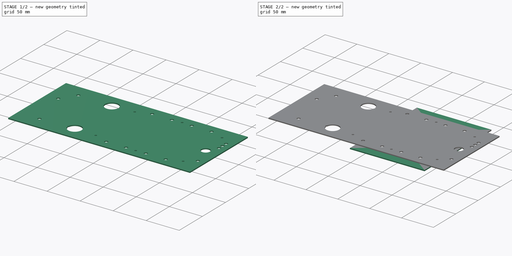
[diagram: build sequence overview — one tinted view per stage of 2, left to right]
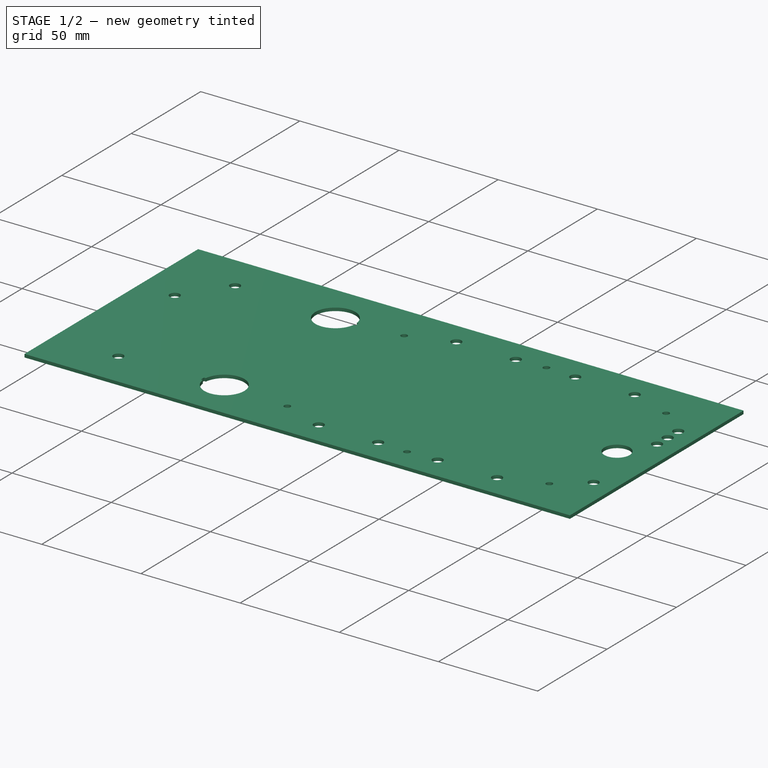
[diagram: stage 1 of 2 — iso view after this stage's code; geometry added in this stage tinted green]
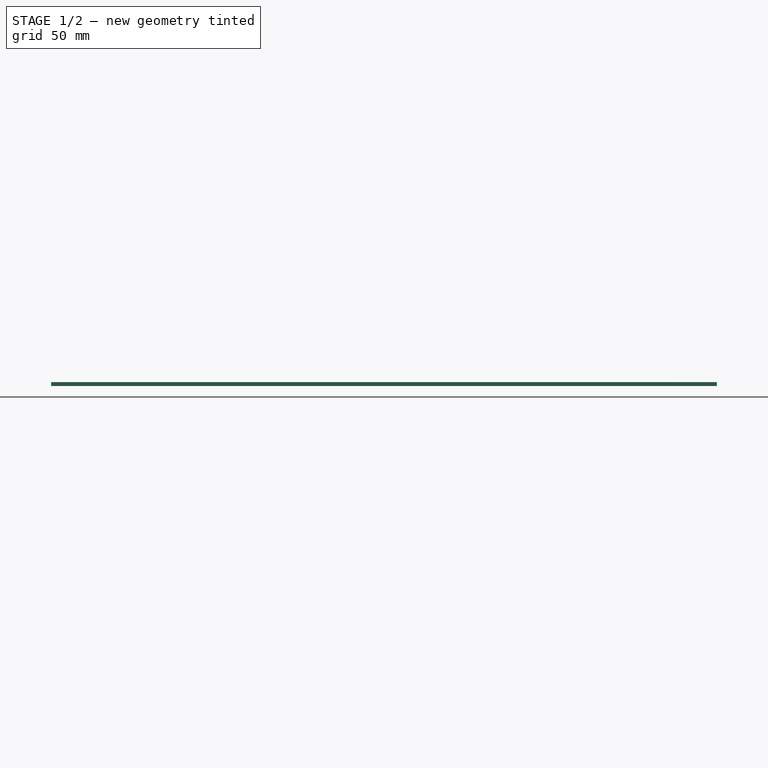
[diagram: stage 1 of 2 — front view after this stage's code; geometry added in this stage tinted green]
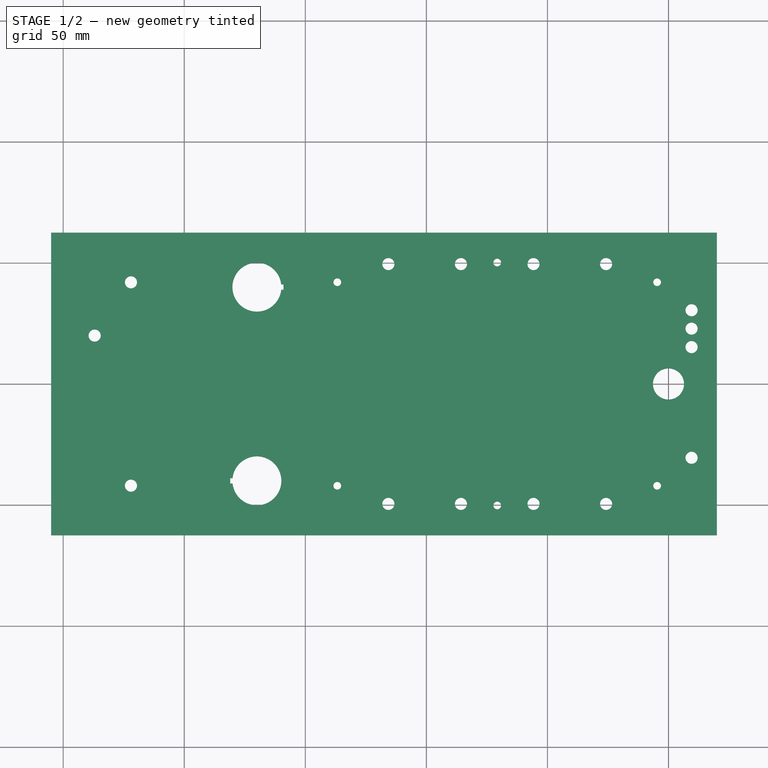
[diagram: stage 1 of 2 — top view after this stage's code; geometry added in this stage tinted green]
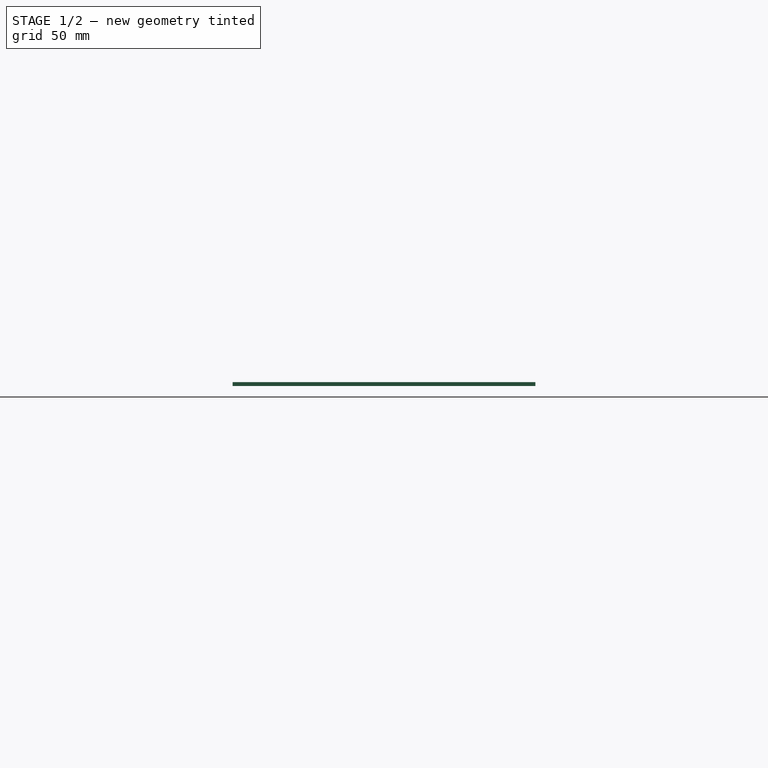
[diagram: stage 1 of 2 — right view after this stage's code; geometry added in this stage tinted green]
FCSTD DOCUMENT  (FreeCAD 0.18R)
Label: telefireeight
License: All rights reserved
LicenseURL: http://en.wikipedia.org/wiki/All_rights_reserved
objects: Sketcher::SketchObject×5, Part::Extrusion×2
note: 7 computed .brp shape members not serialized (recipe doc carries the construction recipe); baked Part::Feature solids carry a one-line shape summary decoded from their .brp

FEATURE [Part::Extrusion] Extrude001  label="extrude top"
  Base = -> Sketch002
  Dir = (0,0,1)
  DirMode = 2
  FaceMakerClass = Part::FaceMakerBullseye
  LengthFwd = 1.6
  LengthRev = 0
  Solid = true
  Symmetric = false
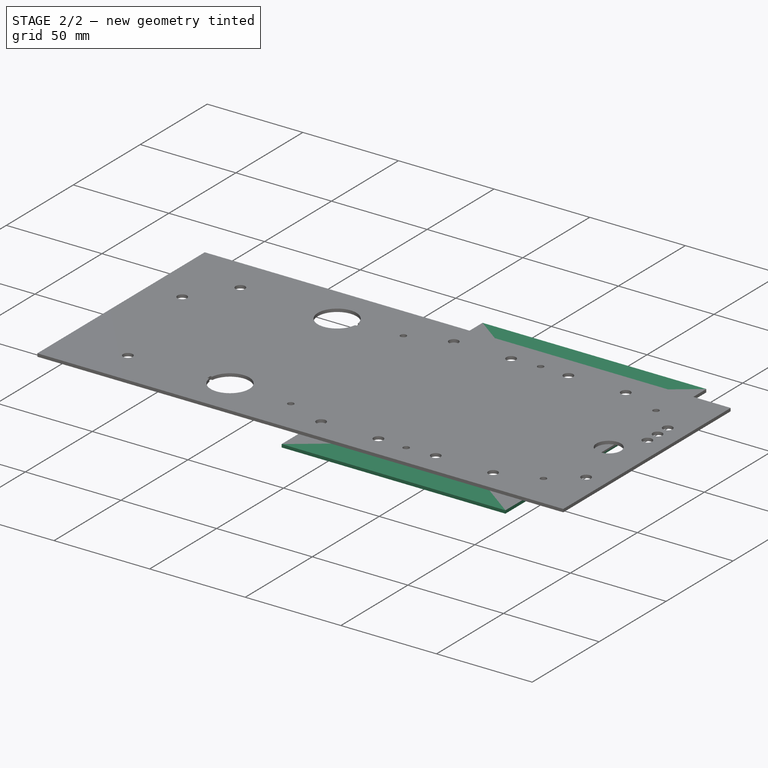
[diagram: stage 2 of 2 — iso view after this stage's code; geometry added in this stage tinted green]
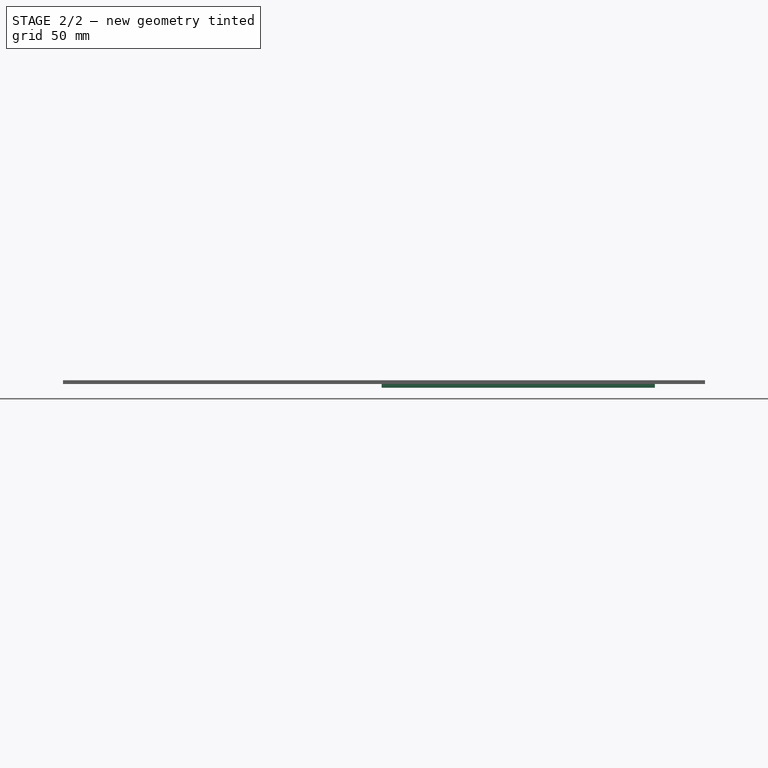
[diagram: stage 2 of 2 — front view after this stage's code; geometry added in this stage tinted green]
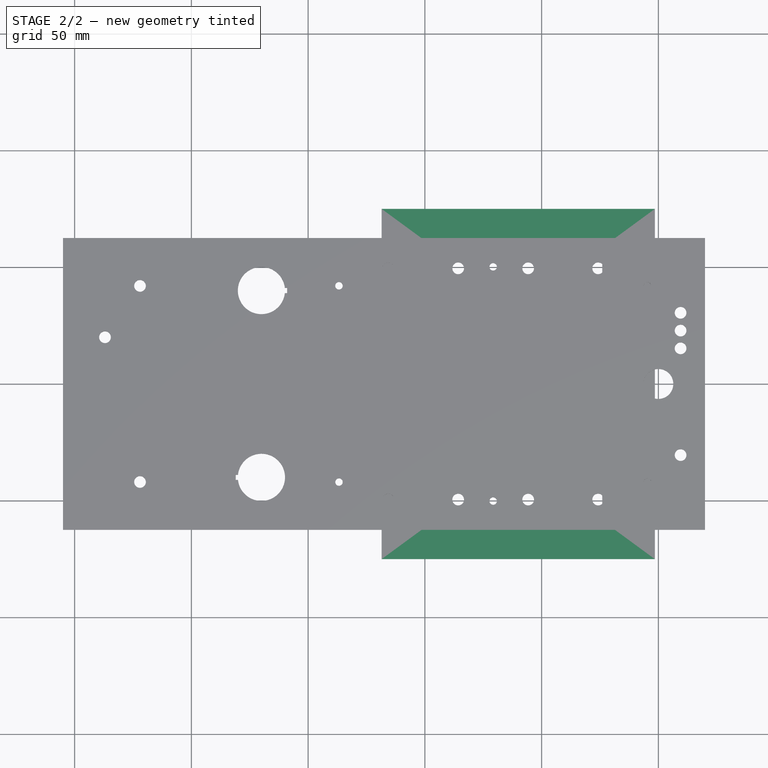
[diagram: stage 2 of 2 — top view after this stage's code; geometry added in this stage tinted green]
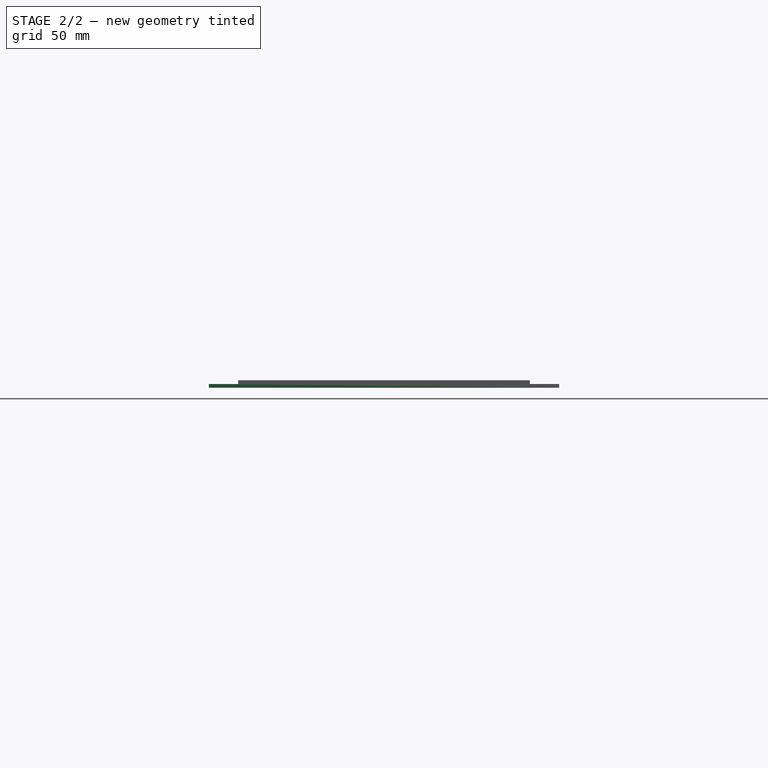
[diagram: stage 2 of 2 — right view after this stage's code; geometry added in this stage tinted green]
FEATURE [Sketcher::SketchObject] Sketch  label="duplex outlet left"
  Placement = pos=(-60,0,0) rot=(0,0,1;0rad)
  sketch-geometry (15):
    g0: LineSegment [constr] StartX=-58.5 StartY=36.5 StartZ=0 EndX=58.5 EndY=36.5 EndZ=0
    g1: LineSegment [constr] StartX=58.5 StartY=36.5 StartZ=0 EndX=58.5 EndY=-36.5 EndZ=0
    g2: LineSegment [constr] StartX=58.5 StartY=-36.5 StartZ=0 EndX=-58.5 EndY=-36.5 EndZ=0
    g3: LineSegment [constr] StartX=-58.5 StartY=-36.5 StartZ=0 EndX=-58.5 EndY=36.5 EndZ=0
    g4: Circle CenterX=0 CenterY=0 CenterZ=0 NormalX=0 NormalY=0 NormalZ=1 AngleXU=0 Radius=1.9
    g5: LineSegment StartX=-33.655 StartY=9.525 StartZ=0 EndX=-33.655 EndY=-9.525 EndZ=0
    g6: LineSegment StartX=-5.207 StartY=9.525 StartZ=0 EndX=-5.207 EndY=-9.525 EndZ=0
    g7: ArcOfCircle CenterX=-19.431 CenterY=-0.714067 CenterZ=0 NormalX=0 NormalY=0 NormalZ=1 AngleXU=0 Radius=17.526 StartAngle=0.623921 EndAngle=2.51767
    g8: ArcOfCircle CenterX=-19.431 CenterY=0.714067 CenterZ=0 NormalX=0 NormalY=0 NormalZ=1 AngleXU=0 Radius=17.526 StartAngle=3.76551 EndAngle=5.65926
    g9: LineSegment StartX=5.207 StartY=9.525 StartZ=0 EndX=5.207 EndY=-9.525 EndZ=0
    g10: LineSegment StartX=33.655 StartY=9.525 StartZ=0 EndX=33.655 EndY=-9.525 EndZ=0
    g11: ArcOfCircle CenterX=19.431 CenterY=-0.714067 CenterZ=0 NormalX=0 NormalY=0 NormalZ=1 AngleXU=0 Radius=17.526 StartAngle=0.623921 EndAngle=2.51767
    g12: ArcOfCircle CenterX=19.431 CenterY=0.714067 CenterZ=0 NormalX=0 NormalY=0 NormalZ=1 AngleXU=0 Radius=17.526 StartAngle=3.76551 EndAngle=5.65926
    g13: Circle CenterX=-41.656 CenterY=0 CenterZ=0 NormalX=0 NormalY=0 NormalZ=1 AngleXU=0 Radius=1.9
    g14: Circle CenterX=41.656 CenterY=0 CenterZ=0 NormalX=0 NormalY=0 NormalZ=1 AngleXU=0 Radius=1.9
  constraints (48):
    c: Coincident(g0,g1)
    c: Coincident(g1,g2)
    c: Coincident(g2,g3)
    c: Coincident(g3,g0)
    c: Horizontal(g0)
    c: Horizontal(g2)
    c: Vertical(g1)
    c: Vertical(g3)
    c: DistanceX(g0,g0) = 117
    c: DistanceY(g3,g3) = 73
    c: Symmetric(g0,g1,g-1)
    c: Symmetric(g0,g0,g-2)
    c: Coincident(g4,g-1)
    c: Radius(g4) = 1.9
    c: Vertical(g5)
    c: DistanceY(g5,g5) = 19.05
    c: Symmetric(g5,g5,g-1)
    c: Vertical(g6)
    c: Equal(g6,g5)
    c: Symmetric(g6,g6,g-1)
    c: DistanceX(g6,g-1) = 5.207
    c: DistanceX(g5,g6) = 28.448
    c: Coincident(g7,g5)
    c: Coincident(g7,g6)
    c: Radius(g7) = 17.526
    c: Coincident(g8,g5)
    c: Coincident(g8,g6)
    c: Equal(g7,g8)
    c: Vertical(g9)
    c: Equal(g6,g9)
    c: Symmetric(g9,g9,g-1)
    c: DistanceX(g-1,g9) = 5.207
    c: Vertical(g10)
    c: Equal(g9,g10)
    c: DistanceX(g9,g10) = 28.448
    c: Coincident(g11,g9)
    c: Coincident(g11,g10)
    c: Equal(g11,g7)
    c: Symmetric(g10,g10,g-1)
    c: Coincident(g12,g9)
    c: Coincident(g12,g10)
    c: Equal(g11,g12)
    c: PointOnObject(g13,g-1)
    c: PointOnObject(g14,g-1)
    c: DistanceX(g13,g14) = 83.312
    c: Symmetric(g13,g14,g-1)
    c: Equal(g4,g14)
    c: Equal(g14,g13)
FEATURE [Sketcher::SketchObject] Sketch001  label="duplex outlet right"
  Placement = pos=(60,0,0) rot=(0,0,1;0rad)
  sketch-geometry (15):
    g0: LineSegment [constr] StartX=-58.5 StartY=36.5 StartZ=0 EndX=58.5 EndY=36.5 EndZ=0
    g1: LineSegment [constr] StartX=58.5 StartY=36.5 StartZ=0 EndX=58.5 EndY=-36.5 EndZ=0
    g2: LineSegment [constr] StartX=58.5 StartY=-36.5 StartZ=0 EndX=-58.5 EndY=-36.5 EndZ=0
    g3: LineSegment [constr] StartX=-58.5 StartY=-36.5 StartZ=0 EndX=-58.5 EndY=36.5 EndZ=0
    g4: Circle CenterX=0 CenterY=0 CenterZ=0 NormalX=0 NormalY=0 NormalZ=1 AngleXU=0 Radius=1.9
    g5: LineSegment StartX=-33.655 StartY=9.525 StartZ=0 EndX=-33.655 EndY=-9.525 EndZ=0
    g6: LineSegment StartX=-5.207 StartY=9.525 StartZ=0 EndX=-5.207 EndY=-9.525 EndZ=0
    g7: ArcOfCircle CenterX=-19.431 CenterY=-0.714067 CenterZ=0 NormalX=0 NormalY=0 NormalZ=1 AngleXU=0 Radius=17.526 StartAngle=0.623921 EndAngle=2.51767
    g8: ArcOfCircle CenterX=-19.431 CenterY=0.714067 CenterZ=0 NormalX=0 NormalY=0 NormalZ=1 AngleXU=0 Radius=17.526 StartAngle=3.76551 EndAngle=5.65926
    g9: LineSegment StartX=5.207 StartY=9.525 StartZ=0 EndX=5.207 EndY=-9.525 EndZ=0
    g10: LineSegment StartX=33.655 StartY=9.525 StartZ=0 EndX=33.655 EndY=-9.525 EndZ=0
    g11: ArcOfCircle CenterX=19.431 CenterY=-0.714067 CenterZ=0 NormalX=0 NormalY=0 NormalZ=1 AngleXU=0 Radius=17.526 StartAngle=0.623921 EndAngle=2.51767
    g12: ArcOfCircle CenterX=19.431 CenterY=0.714067 CenterZ=0 NormalX=0 NormalY=0 NormalZ=1 AngleXU=0 Radius=17.526 StartAngle=3.76551 EndAngle=5.65926
    g13: Circle CenterX=-41.656 CenterY=0 CenterZ=0 NormalX=0 NormalY=0 NormalZ=1 AngleXU=0 Radius=1.9
    g14: Circle CenterX=41.656 CenterY=0 CenterZ=0 NormalX=0 NormalY=0 NormalZ=1 AngleXU=0 Radius=1.9
  constraints (48):
    c: Coincident(g0,g1)
    c: Coincident(g1,g2)
    c: Coincident(g2,g3)
    c: Coincident(g3,g0)
    c: Horizontal(g0)
    c: Horizontal(g2)
    c: Vertical(g1)
    c: Vertical(g3)
    c: DistanceX(g0,g0) = 117
    c: DistanceY(g3,g3) = 73
    c: Symmetric(g0,g1,g-1)
    c: Symmetric(g0,g0,g-2)
    c: Coincident(g4,g-1)
    c: Radius(g4) = 1.9
    c: Vertical(g5)
    c: DistanceY(g5,g5) = 19.05
    c: Symmetric(g5,g5,g-1)
    c: Vertical(g6)
    c: Equal(g6,g5)
    c: Symmetric(g6,g6,g-1)
    c: DistanceX(g6,g-1) = 5.207
    c: DistanceX(g5,g6) = 28.448
    c: Coincident(g7,g5)
    c: Coincident(g7,g6)
    c: Radius(g7) = 17.526
    c: Coincident(g8,g5)
    c: Coincident(g8,g6)
    c: Equal(g7,g8)
    c: Vertical(g9)
    c: Equal(g6,g9)
    c: Symmetric(g9,g9,g-1)
    c: DistanceX(g-1,g9) = 5.207
    c: Vertical(g10)
    c: Equal(g9,g10)
    c: DistanceX(g9,g10) = 28.448
    c: Coincident(g11,g9)
    c: Coincident(g11,g10)
    c: Equal(g11,g7)
    c: Symmetric(g10,g10,g-1)
    c: Coincident(g12,g9)
    c: Coincident(g12,g10)
    c: Equal(g11,g12)
    c: PointOnObject(g13,g-1)
    c: PointOnObject(g14,g-1)
    c: DistanceX(g13,g14) = 83.312
    c: Symmetric(g13,g14,g-1)
    c: Equal(g4,g14)
    c: Equal(g14,g13)
FEATURE [Sketcher::SketchObject] Sketch002  label="top"
  sketch-geometry (41):
    g0: Circle CenterX=0 CenterY=0 CenterZ=0 NormalX=0 NormalY=0 NormalZ=1 AngleXU=0 Radius=6.4135
    g1: LineSegment [constr] StartX=-136.779 StartY=42.037 StartZ=0 EndX=-136.779 EndY=-42.037 EndZ=0
    g2: Circle CenterX=-136.779 CenterY=42.037 CenterZ=0 NormalX=0 NormalY=0 NormalZ=1 AngleXU=0 Radius=1.5875
    g3: Circle CenterX=-136.779 CenterY=-42.037 CenterZ=0 NormalX=0 NormalY=0 NormalZ=1 AngleXU=0 Radius=1.5875
    g4: LineSegment [constr] StartX=-4.699 StartY=42.037 StartZ=0 EndX=-4.699 EndY=-42.037 EndZ=0
    g5: Circle CenterX=-4.699 CenterY=42.037 CenterZ=0 NormalX=0 NormalY=0 NormalZ=1 AngleXU=0 Radius=1.5875
    g6: Circle CenterX=-4.699 CenterY=-42.037 CenterZ=0 NormalX=0 NormalY=0 NormalZ=1 AngleXU=0 Radius=1.5875
    g7: LineSegment [constr] StartX=-70.739 StartY=50.165 StartZ=0 EndX=-70.739 EndY=-50.165 EndZ=0
    g8: Circle CenterX=-70.739 CenterY=50.165 CenterZ=0 NormalX=0 NormalY=0 NormalZ=1 AngleXU=0 Radius=1.5875
    g9: Circle CenterX=-70.739 CenterY=-50.165 CenterZ=0 NormalX=0 NormalY=0 NormalZ=1 AngleXU=0 Radius=1.5875
    g10: LineSegment [constr] StartX=9.525 StartY=30.48 StartZ=0 EndX=9.525 EndY=-30.48 EndZ=0
    g11: Circle CenterX=9.525 CenterY=30.48 CenterZ=0 NormalX=0 NormalY=0 NormalZ=1 AngleXU=0 Radius=2.5
    g12: Circle CenterX=9.525 CenterY=22.86 CenterZ=0 NormalX=0 NormalY=0 NormalZ=1 AngleXU=0 Radius=2.5
    g13: Circle CenterX=9.525 CenterY=15.24 CenterZ=0 NormalX=0 NormalY=0 NormalZ=1 AngleXU=0 Radius=2.5
    g14: Circle CenterX=9.525 CenterY=-30.48 CenterZ=0 NormalX=0 NormalY=0 NormalZ=1 AngleXU=0 Radius=2.5
    g15: LineSegment [constr] StartX=-115.697 StartY=49.53 StartZ=0 EndX=-25.781 EndY=49.53 EndZ=0
    g16: Circle CenterX=-25.781 CenterY=49.53 CenterZ=0 NormalX=0 NormalY=0 NormalZ=1 AngleXU=0 Radius=2.5
    g17: Circle CenterX=-115.697 CenterY=49.53 CenterZ=0 NormalX=0 NormalY=0 NormalZ=1 AngleXU=0 Radius=2.5
    g18: Circle CenterX=-85.725 CenterY=49.53 CenterZ=0 NormalX=0 NormalY=0 NormalZ=1 AngleXU=0 Radius=2.5
    g19: Circle CenterX=-55.753 CenterY=49.53 CenterZ=0 NormalX=0 NormalY=0 NormalZ=1 AngleXU=0 Radius=2.5
    g20: LineSegment [constr] StartX=-115.697 StartY=-49.53 StartZ=0 EndX=-25.781 EndY=-49.53 EndZ=0
    g21: Circle CenterX=-115.697 CenterY=-49.53 CenterZ=0 NormalX=0 NormalY=0 NormalZ=1 AngleXU=0 Radius=2.5
    g22: Circle CenterX=-85.725 CenterY=-49.53 CenterZ=0 NormalX=0 NormalY=0 NormalZ=1 AngleXU=0 Radius=2.5
    g23: Circle CenterX=-55.753 CenterY=-49.53 CenterZ=0 NormalX=0 NormalY=0 NormalZ=1 AngleXU=0 Radius=2.5
    g24: Circle CenterX=-25.781 CenterY=-49.53 CenterZ=0 NormalX=0 NormalY=0 NormalZ=1 AngleXU=0 Radius=2.5
    g25: LineSegment [constr] StartX=-222 StartY=42 StartZ=0 EndX=-222 EndY=-42 EndZ=0
    g26: Circle CenterX=-222 CenterY=42 CenterZ=0 NormalX=0 NormalY=0 NormalZ=1 AngleXU=0 Radius=2.5
    g27: Circle CenterX=-222 CenterY=-42 CenterZ=0 NormalX=0 NormalY=0 NormalZ=1 AngleXU=0 Radius=2.5
    g28: Circle CenterX=-237 CenterY=20 CenterZ=0 NormalX=0 NormalY=0 NormalZ=1 AngleXU=0 Radius=2.5
    g29: LineSegment StartX=-159 StartY=41.1 StartZ=0 EndX=-159 EndY=38.9 EndZ=0
    g30: LineSegment StartX=-159 StartY=38.9 StartZ=0 EndX=-159.96 EndY=38.9 EndZ=0
    g31: LineSegment StartX=-159 StartY=41.1 StartZ=0 EndX=-159.96 EndY=41.1 EndZ=0
    g32: ArcOfCircle CenterX=-170 CenterY=40 CenterZ=0 NormalX=0 NormalY=0 NormalZ=1 AngleXU=0 Radius=10.1 StartAngle=0.109127 EndAngle=6.17406
    g33: LineSegment StartX=-181 StartY=-38.9 StartZ=0 EndX=-181 EndY=-41.1 EndZ=0
    g34: LineSegment StartX=-181 StartY=-41.1 StartZ=0 EndX=-180.04 EndY=-41.1 EndZ=0
    g35: LineSegment StartX=-181 StartY=-38.9 StartZ=0 EndX=-180.04 EndY=-38.9 EndZ=0
    g36: ArcOfCircle CenterX=-170 CenterY=-40 CenterZ=0 NormalX=0 NormalY=0 NormalZ=1 AngleXU=0 Radius=10.1 StartAngle=3.25072 EndAngle=9.31565
    g37: LineSegment StartX=-255 StartY=62.5 StartZ=0 EndX=20 EndY=62.5 EndZ=0
    g38: LineSegment StartX=20 StartY=62.5 StartZ=0 EndX=20 EndY=-62.5 EndZ=0
    g39: LineSegment StartX=20 StartY=-62.5 StartZ=0 EndX=-255 EndY=-62.5 EndZ=0
    g40: LineSegment StartX=-255 StartY=-62.5 StartZ=0 EndX=-255 EndY=62.5 EndZ=0
  constraints (115):
    c: Coincident(g0,g-1)
    c: Radius(g0) = 6.4135
    c: Vertical(g1)
    c: DistanceX(g-1,g1) = -136.779
    c: DistanceY(g-1,g1) = 42.037
    c: Coincident(g2,g1)
    c: Radius(g2) = 1.5875
    c: DistanceY(g1,g-1) = 42.037
    c: Coincident(g3,g1)
    c: Equal(g3,g2)
    c: Vertical(g4)
    c: Horizontal(g4,g1)
    c: Equal(g1,g4)
    c: DistanceX(g4,g-1) = 4.699
    c: Coincident(g5,g4)
    c: Coincident(g6,g4)
    c: Equal(g5,g6)
    c: Equal(g6,g3)
    c: Vertical(g7)
    c: DistanceX(g7,g-1) = 70.739
    c: DistanceY(g-1,g7) = 50.165
    c: DistanceY(g7,g-1) = 50.165
    c: Coincident(g8,g7)
    c: Coincident(g9,g7)
    c: Equal(g8,g9)
    c: Equal(g9,g5)
    c: Vertical(g10)
    c: DistanceX(g-1,g10) = 9.525
    c: DistanceY(g-1,g10) = 30.48
    c: Coincident(g11,g10)
    c: Radius(g11) = 2.5
    c: PointOnObject(g12,g10)
    c: Equal(g11,g12)
    c: DistanceY(g-1,g12) = 22.86
    c: DistanceY(g10,g-1) = 30.48
    c: PointOnObject(g13,g10)
    c: Coincident(g14,g10)
    c: Equal(g12,g13)
    c: Equal(g13,g14)
    c: DistanceY(g-1,g13) = 15.24
    c: Horizontal(g15)
    c: DistanceY(g-1,g15) = 49.53
    c: Coincident(g16,g15)
    c: Coincident(g17,g15)
    c: Equal(g17,g16)
    c: Equal(g16,g11)
    c: PointOnObject(g18,g15)
    c: PointOnObject(g19,g15)
    c: Equal(g16,g19)
    c: Equal(g19,g18)
    c: DistanceX(g15,g-1) = 25.781
    c: DistanceX(g19,g-1) = 55.753
    c: DistanceX(g18,g-1) = 85.725
    c: DistanceX(g15,g-1) = 115.697
    c: Horizontal(g20)
    c: DistanceY(g20,g-1) = 49.53
    c: Coincident(g21,g20)
    c: PointOnObject(g22,g20)
    c: PointOnObject(g23,g20)
    c: Coincident(g24,g20)
    c: Equal(g21,g22)
    c: Equal(g22,g23)
    c: Equal(g23,g24)
    c: Equal(g24,g16)
    c: Vertical(g15,g20)
    c: Vertical(g19,g23)
    c: Vertical(g18,g22)
    c: Vertical(g15,g20)
    c: DistanceX(g25,g-1) = 222
    c: DistanceY(g25,g25) = 84
    c: Symmetric(g25,g25,g-1)
    c: Coincident(g26,g25)
    c: Coincident(g27,g25)
    c: Radius(g26) = 2.5
    c: Equal(g26,g27)
    c: Equal(g28,g26)
    c: DistanceX(g28,g25) = 15
    c: DistanceY(g28,g25) = 22
    c: Vertical(g29)
    c: DistanceY(g29,g29) = 2.2
    c: Coincident(g30,g29)
    c: Horizontal(g30)
    c: Coincident(g31,g29)
    c: Horizontal(g31)
    c: Coincident(g32,g31)
    c: Coincident(g32,g30)
    c: Radius(g32) = 10.1
    c: DistanceX(g32,g29) = 11
    c: DistanceY(g-1,g32) = 40
    c: DistanceX(g32,g-1) = 170
    c: Vertical(g31,g30)
    c: Vertical(g33)
    c: DistanceY(g33,g33) = 2.2
    c: Coincident(g34,g33)
    c: Horizontal(g34)
    c: Coincident(g35,g33)
    c: Horizontal(g35)
    c: Coincident(g36,g35)
    c: Coincident(g36,g34)
    c: DistanceX(g33,g36) = 11
    c: Vertical(g32,g36)
    c: Equal(g32,g36)
    c: DistanceY(g36,g-1) = 40
    c: Vertical(g35,g34)
    c: Coincident(g37,g38)
    c: Coincident(g38,g39)
    c: Coincident(g39,g40)
    c: Coincident(g40,g37)
    c: Horizontal(g37)
    c: Horizontal(g39)
    c: Vertical(g40)
    c: DistanceY(g38,g38) = 125
    c: Symmetric(g37,g38,g-1)
    c: DistanceX(g37,g37) = 275
    c: DistanceX(g-1,g37) = 20
FEATURE [Sketcher::SketchObject] Sketch003  label="simplified duplex outlet"
  Placement = pos=(-60,0,0) rot=(0,0,1;0rad)
  sketch-geometry (10):
    g0: LineSegment [constr] StartX=-58.5 StartY=36.5 StartZ=0 EndX=58.5 EndY=36.5 EndZ=0
    g1: LineSegment [constr] StartX=58.5 StartY=36.5 StartZ=0 EndX=58.5 EndY=-36.5 EndZ=0
    g2: LineSegment [constr] StartX=58.5 StartY=-36.5 StartZ=0 EndX=-58.5 EndY=-36.5 EndZ=0
    g3: LineSegment [constr] StartX=-58.5 StartY=-36.5 StartZ=0 EndX=-58.5 EndY=36.5 EndZ=0
    g4: Circle CenterX=-41.656 CenterY=0 CenterZ=0 NormalX=0 NormalY=0 NormalZ=1 AngleXU=0 Radius=1.905
    g5: Circle CenterX=41.656 CenterY=0 CenterZ=0 NormalX=0 NormalY=0 NormalZ=1 AngleXU=0 Radius=1.905
    g6: LineSegment StartX=-36 StartY=20 StartZ=0 EndX=36 EndY=20 EndZ=0
    g7: LineSegment StartX=36 StartY=20 StartZ=0 EndX=36 EndY=-20 EndZ=0
    g8: LineSegment StartX=36 StartY=-20 StartZ=0 EndX=-36 EndY=-20 EndZ=0
    g9: LineSegment StartX=-36 StartY=-20 StartZ=0 EndX=-36 EndY=20 EndZ=0
  constraints (30):
    c: Coincident(g0,g1)
    c: Coincident(g1,g2)
    c: Coincident(g2,g3)
    c: Coincident(g3,g0)
    c: Horizontal(g0)
    c: Horizontal(g2)
    c: Vertical(g1)
    c: Vertical(g3)
    c: DistanceX(g0,g0) = 117
    c: DistanceY(g3,g3) = 73
    c: Symmetric(g0,g1,g-1)
    c: Symmetric(g0,g0,g-2)
    c: PointOnObject(g4,g-1)
    c: PointOnObject(g5,g-1)
    c: DistanceX(g4,g5) = 83.312
    c: Symmetric(g4,g5,g-1)
    c: Equal(g5,g4)
    c: Coincident(g6,g7)
    c: Coincident(g7,g8)
    c: Coincident(g8,g9)
    c: Coincident(g9,g6)
    c: Horizontal(g6)
    c: Horizontal(g8)
    c: Vertical(g7)
    c: Vertical(g9)
    c: DistanceX(g6,g6) = 72
    c: DistanceY(g7,g7) = 40
    c: Symmetric(g6,g6,g-2)
    c: Symmetric(g6,g8,g-1)
    c: Radius(g4) = 1.905
FEATURE [Sketcher::SketchObject] Sketch004  label="stacked duplex outlets"
  Placement = pos=(-60,0,0) rot=(0,0,1;0rad)
  sketch-geometry (26):
    g0: LineSegment StartX=-36 StartY=58.5 StartZ=0 EndX=36 EndY=58.5 EndZ=0
    g1: LineSegment StartX=36 StartY=58.5 StartZ=0 EndX=36 EndY=18.5 EndZ=0
    g2: LineSegment StartX=36 StartY=18.5 StartZ=0 EndX=-36 EndY=18.5 EndZ=0
    g3: LineSegment StartX=-36 StartY=18.5 StartZ=0 EndX=-36 EndY=58.5 EndZ=0
    g4: LineSegment [constr] StartX=-58.5 StartY=75 StartZ=0 EndX=58.5 EndY=75 EndZ=0
    g5: LineSegment [constr] StartX=58.5 StartY=75 StartZ=0 EndX=58.5 EndY=2 EndZ=0
    g6: LineSegment [constr] StartX=58.5 StartY=2 StartZ=0 EndX=-58.5 EndY=2 EndZ=0
    g7: LineSegment [constr] StartX=-58.5 StartY=2 StartZ=0 EndX=-58.5 EndY=75 EndZ=0
    g8: LineSegment [constr] StartX=-58.5 StartY=38.5 StartZ=0 EndX=58.5 EndY=38.5 EndZ=0
    g9: Circle CenterX=-41.656 CenterY=38.5 CenterZ=0 NormalX=0 NormalY=0 NormalZ=1 AngleXU=0 Radius=1.905
    g10: Circle CenterX=41.656 CenterY=38.5 CenterZ=0 NormalX=0 NormalY=0 NormalZ=1 AngleXU=0 Radius=1.905
    g11: LineSegment [constr] StartX=-58.5 StartY=-2 StartZ=0 EndX=58.5 EndY=-2 EndZ=0
    g12: LineSegment [constr] StartX=58.5 StartY=-2 StartZ=0 EndX=58.5 EndY=-75 EndZ=0
    g13: LineSegment [constr] StartX=58.5 StartY=-75 StartZ=0 EndX=-58.5 EndY=-75 EndZ=0
    g14: LineSegment [constr] StartX=-58.5 StartY=-75 StartZ=0 EndX=-58.5 EndY=-2 EndZ=0
    g15: LineSegment [constr] StartX=-58.5 StartY=-38.5 StartZ=0 EndX=58.5 EndY=-38.5 EndZ=0
    g16: LineSegment StartX=-36 StartY=-18.5 StartZ=0 EndX=36 EndY=-18.5 EndZ=0
    g17: LineSegment StartX=36 StartY=-18.5 StartZ=0 EndX=36 EndY=-58.5 EndZ=0
    g18: LineSegment StartX=36 StartY=-58.5 StartZ=0 EndX=-36 EndY=-58.5 EndZ=0
    g19: LineSegment StartX=-36 StartY=-58.5 StartZ=0 EndX=-36 EndY=-18.5 EndZ=0
    g20: Circle CenterX=-41.656 CenterY=-38.5 CenterZ=0 NormalX=0 NormalY=0 NormalZ=1 AngleXU=0 Radius=1.905
    g21: Circle CenterX=41.656 CenterY=-38.5 CenterZ=0 NormalX=0 NormalY=0 NormalZ=1 AngleXU=0 Radius=1.905
    g22: LineSegment StartX=-58.5 StartY=75 StartZ=0 EndX=58.5 EndY=75 EndZ=0
    g23: LineSegment StartX=58.5 StartY=75 StartZ=0 EndX=58.5 EndY=-75 EndZ=0
    g24: LineSegment StartX=58.5 StartY=-75 StartZ=0 EndX=-58.5 EndY=-75 EndZ=0
    g25: LineSegment StartX=-58.5 StartY=-75 StartZ=0 EndX=-58.5 EndY=75 EndZ=0
  constraints (76):
    c: Coincident(g0,g1)
    c: Coincident(g1,g2)
    c: Coincident(g2,g3)
    c: Coincident(g3,g0)
    c: Horizontal(g0)
    c: Horizontal(g2)
    c: Vertical(g1)
    c: Vertical(g3)
    c: DistanceX(g0,g0) = 72
    c: DistanceY(g1,g1) = 40
    c: Symmetric(g2,g1,g-2)
    c: Coincident(g4,g5)
    c: Coincident(g5,g6)
    c: Coincident(g6,g7)
    c: Coincident(g7,g4)
    c: Horizontal(g4)
    c: Horizontal(g6)
    c: Vertical(g5)
    c: Vertical(g7)
    c: DistanceX(g4,g4) = 117
    c: Symmetric(g4,g4,g-2)
    c: PointOnObject(g8,g7)
    c: PointOnObject(g8,g5)
    c: DistanceY(g-1,g8) = 38.5
    c: Symmetric(g0,g1,g8)
    c: Symmetric(g4,g6,g8)
    c: DistanceY(g7,g7) = 73
    c: PointOnObject(g9,g8)
    c: PointOnObject(g10,g8)
    c: Radius(g9) = 1.905
    c: Equal(g9,g10)
    c: DistanceX(g9,g10) = 83.312
    c: Symmetric(g9,g10,g-2)
    c: Coincident(g11,g12)
    c: Coincident(g12,g13)
    c: Coincident(g13,g14)
    c: Coincident(g14,g11)
    c: Horizontal(g11)
    c: Horizontal(g13)
    c: Vertical(g12)
    c: Vertical(g14)
    c: Equal(g11,g6)
    c: Equal(g7,g14)
    c: PointOnObject(g15,g14)
    c: PointOnObject(g15,g12)
    c: DistanceY(g15,g-1) = 38.5
    c: Symmetric(g11,g13,g15)
    c: Symmetric(g11,g11,g-2)
    c: Coincident(g16,g17)
    c: Coincident(g17,g18)
    c: Coincident(g18,g19)
    c: Coincident(g19,g16)
    c: Horizontal(g16)
    c: Horizontal(g18)
    c: Vertical(g17)
    c: Vertical(g19)
    c: Equal(g16,g2)
    c: Symmetric(g16,g16,g-2)
    c: DistanceY(g17,g17) = 40
    c: Symmetric(g16,g17,g15)
    c: PointOnObject(g20,g15)
    c: PointOnObject(g21,g15)
    c: Equal(g9,g20)
    c: Equal(g20,g21)
    c: Vertical(g20,g9)
    c: Vertical(g10,g21)
    c: Coincident(g22,g23)
    c: Coincident(g23,g24)
    c: Coincident(g24,g25)
    c: Coincident(g25,g22)
    c: Horizontal(g22)
    c: Horizontal(g24)
    c: Vertical(g23)
    c: Vertical(g25)
    c: Coincident(g22,g4)
    c: Coincident(g23,g12)
FEATURE [Part::Extrusion] Extrude  label="extrude stacked duplex outlets"
  Base = -> Sketch004
  Dir = (0,0,1)
  DirMode = 2
  FaceMakerClass = Part::FaceMakerBullseye
  LengthFwd = -1.6
  LengthRev = 0
  Solid = true
  Symmetric = false
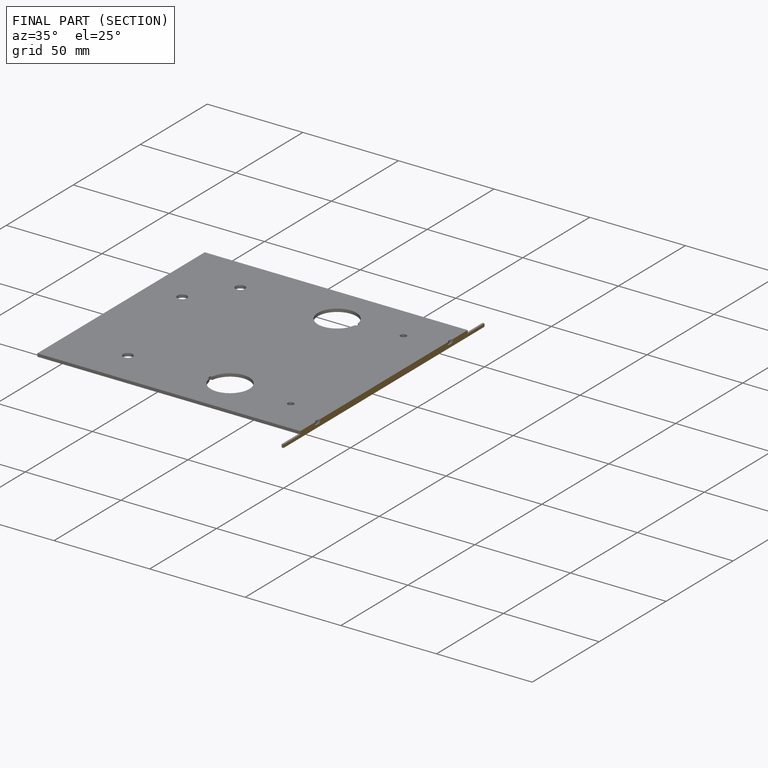
[diagram: finished part — half-section view (interior)]
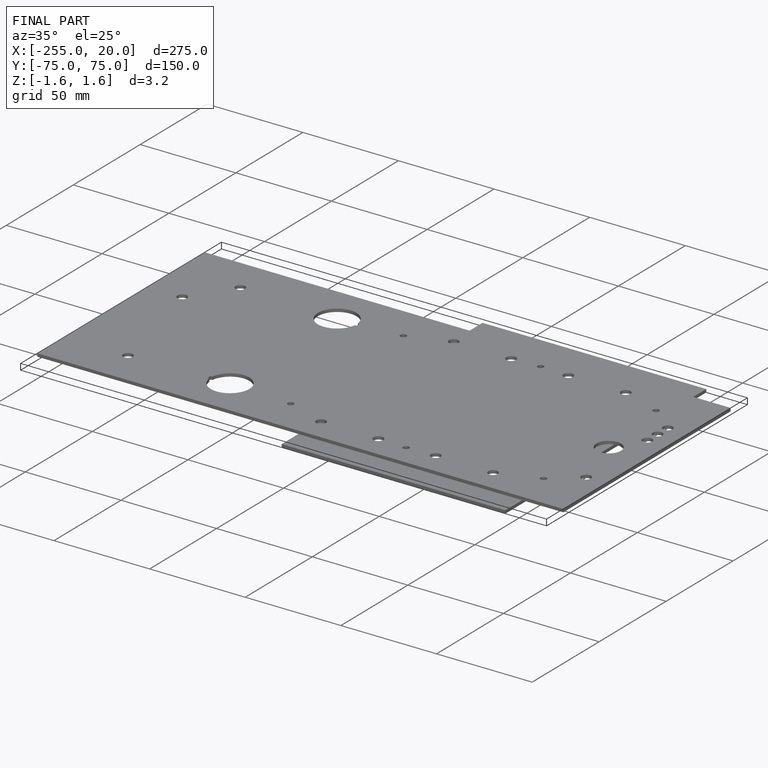
[diagram: finished part — iso view with bounding-box wireframe]
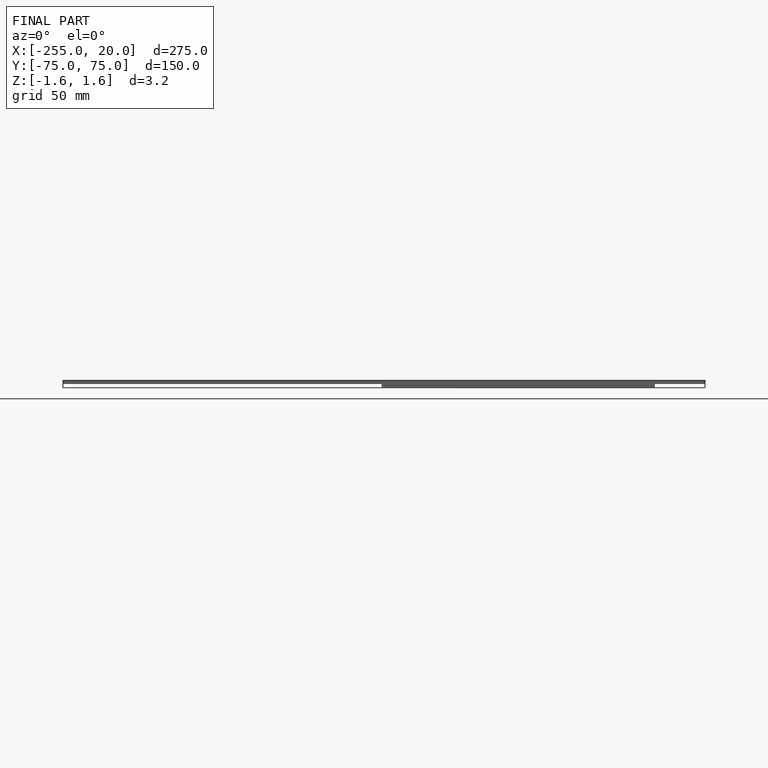
[diagram: finished part — front view with bounding-box wireframe]
